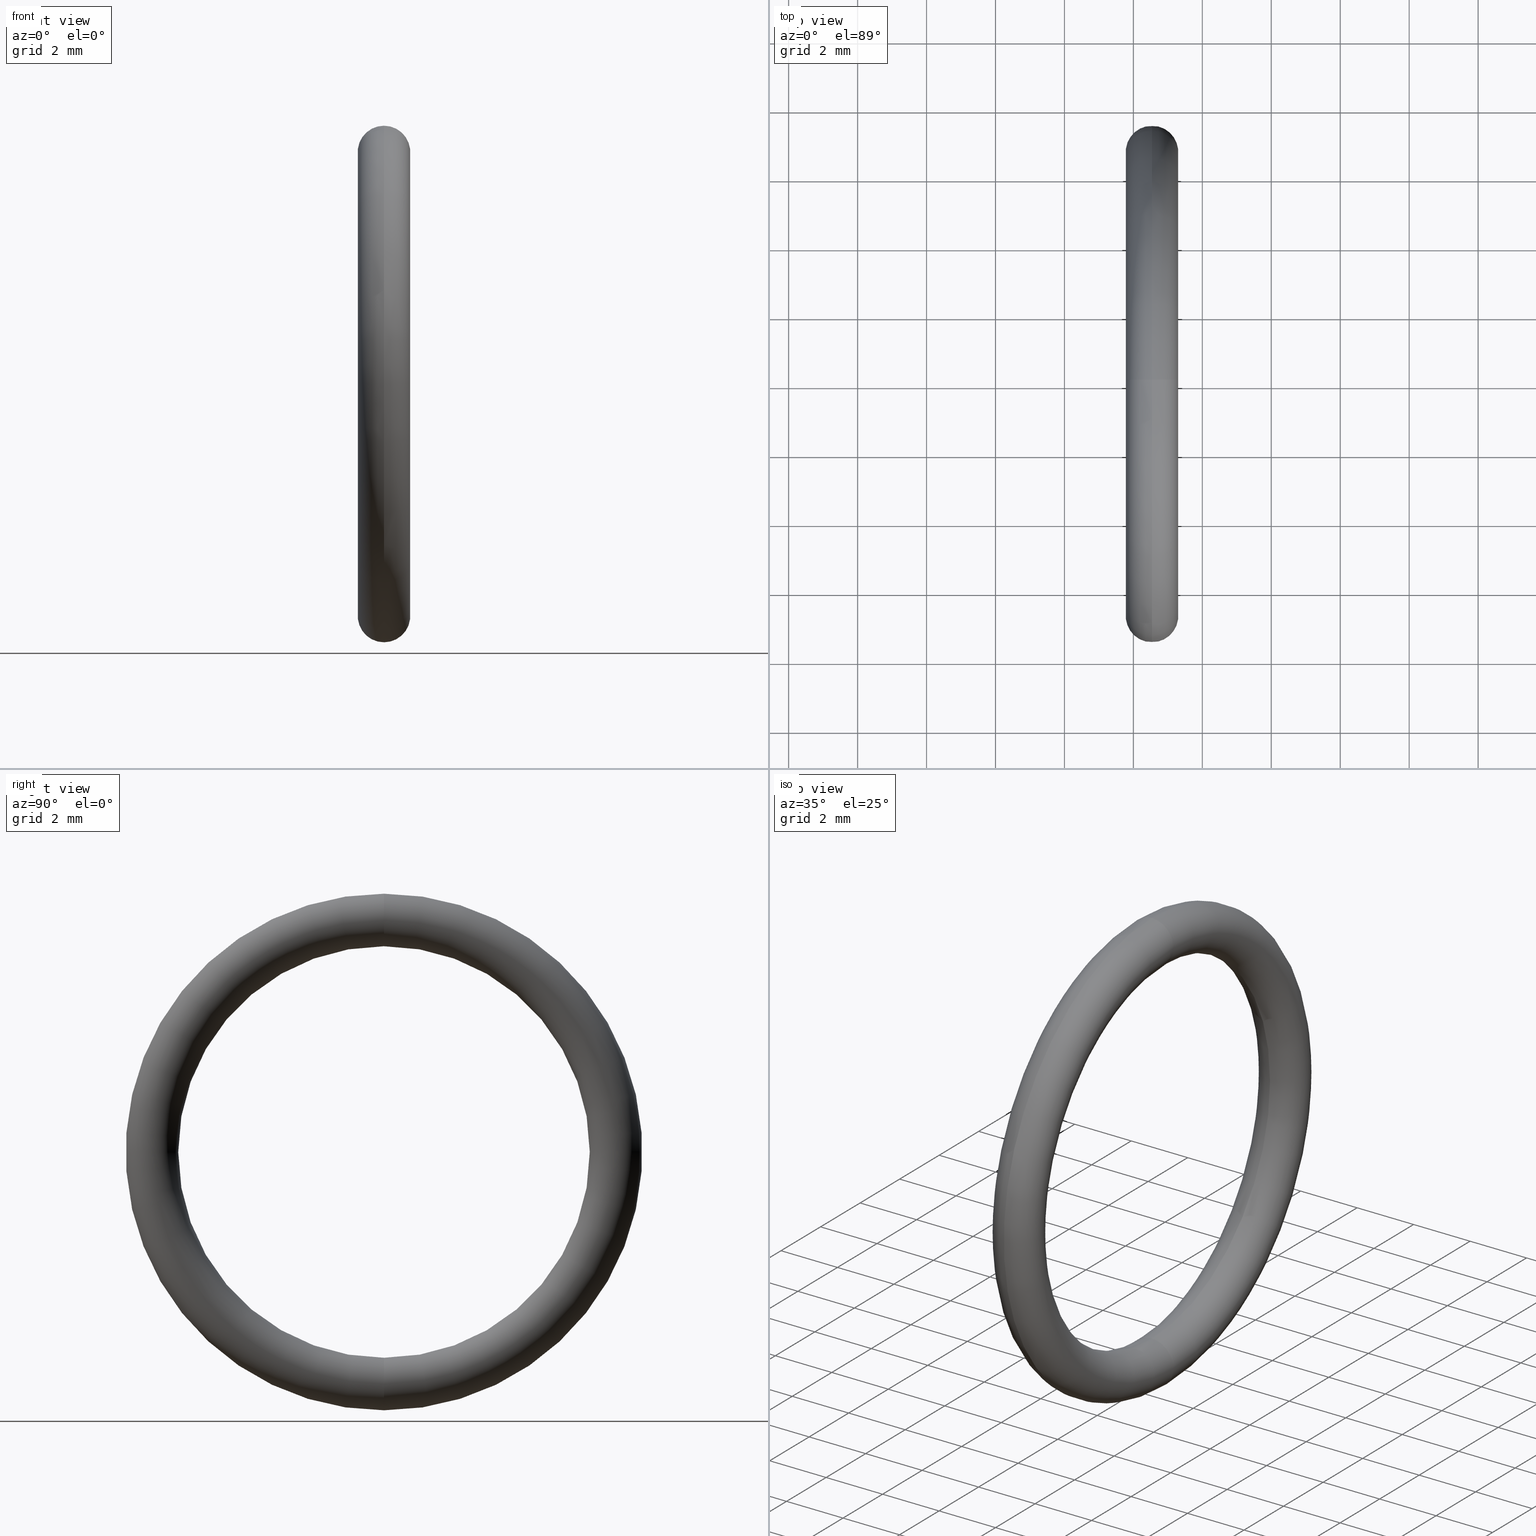
[diagram: canonical four-view strip — front | top / right | iso, engineering-drawing reading convention]
A machine part, canonical four-view strip (front | top / right | iso — engineering-drawing reading convention). The complete STEP part file that produces these views, byte-faithful:
ISO-10303-21;
HEADER;
FILE_DESCRIPTION (( 'STEP AP203' ),
    '1' );
FILE_NAME ('OR-09-VT.STEP',
    '2008-06-24T09:13:25',
    ( 'BSI05' ),
    ( 'BAYSTATE' ),
    'SwSTEP 2.0',
    'SolidWorks 2007',
    '' );
FILE_SCHEMA (( 'CONFIG_CONTROL_DESIGN' ));
ENDSEC;

DATA;
#1 = CIRCLE ( 'NONE', #5, 0.2949999999999999800 ) ;
#2 = DIRECTION ( 'NONE',  ( 0.0000000000000000000, 0.0000000000000000000, 1.000000000000000000 ) ) ;
#3 = DIRECTION ( 'NONE',  ( -1.000000000000000000, 0.0000000000000000000, 0.0000000000000000000 ) ) ;
#4 = CARTESIAN_POINT ( 'NONE',  ( 0.1000000000000000500, 0.0000000000000000000, 0.0000000000000000000 ) ) ;
#5 = AXIS2_PLACEMENT_3D ( 'NONE', #4, #3, #2 ) ;
#6 = LOCAL_TIME ( 14, 43, 25.00000000000000000, #128 ) ;
#7 = CC_DESIGN_APPROVAL ( #131, ( #134 ) ) ;
#8 = APPROVAL_DATE_TIME ( #10, #131 ) ;
#9 = LOCAL_TIME ( 14, 43, 25.00000000000000000, #105 ) ;
#10 = DATE_AND_TIME ( #11, #6 ) ;
#11 = CALENDAR_DATE ( 2008, 24, 6 ) ;
#12 = DATE_AND_TIME ( #14, #9 ) ;
#13 = DATE_TIME_ROLE ( 'creation_date' ) ;
#14 = CALENDAR_DATE ( 2008, 24, 6 ) ;
#15 = CC_DESIGN_DATE_AND_TIME_ASSIGNMENT ( #12, #13, ( #134 ) ) ;
#16 = EDGE_LOOP ( 'NONE', ( #17, #26, #46, #47 ) ) ;
#17 = ORIENTED_EDGE ( 'NONE', *, *, #39, .F. ) ;
#18 = ORIENTED_EDGE ( 'NONE', *, *, #37, .T. ) ;
#19 = ORIENTED_EDGE ( 'NONE', *, *, #57, .F. ) ;
#20 = ADVANCED_FACE ( 'NONE', ( #35 ), #31, .T. ) ;
#21 = EDGE_CURVE ( 'NONE', #49, #52, #68, .T. ) ;
#22 = ORIENTED_EDGE ( 'NONE', *, *, #62, .T. ) ;
#23 = EDGE_LOOP ( 'NONE', ( #38, #22, #55, #51 ) ) ;
#24 = EDGE_CURVE ( 'NONE', #52, #49, #71, .T. ) ;
#25 = EDGE_CURVE ( 'NONE', #54, #53, #84, .T. ) ;
#26 = ORIENTED_EDGE ( 'NONE', *, *, #24, .F. ) ;
#27 = ADVANCED_FACE ( 'NONE', ( #85 ), #86, .T. ) ;
#28 = DIRECTION ( 'NONE',  ( 0.0000000000000000000, 0.0000000000000000000, 1.000000000000000000 ) ) ;
#29 = DIRECTION ( 'NONE',  ( -1.000000000000000000, 0.0000000000000000000, 0.0000000000000000000 ) ) ;
#30 = AXIS2_PLACEMENT_3D ( 'NONE', #34, #29, #28 ) ;
#31 = TOROIDAL_SURFACE ( 'NONE', #30, 0.2649999999999999600, 0.03000000000000000900 ) ;
#32 = PERSON_AND_ORGANIZATION_ROLE ( 'creator' ) ;
#33 = PERSON_AND_ORGANIZATION ( #148, #147 ) ;
#34 = CARTESIAN_POINT ( 'NONE',  ( 0.1000000000000000500, 0.0000000000000000000, 0.0000000000000000000 ) ) ;
#35 = FACE_OUTER_BOUND ( 'NONE', #16, .T. ) ;
#36 = MANIFOLD_SOLID_BREP ( 'NONE', #40 ) ;
#37 = EDGE_CURVE ( 'NONE', #53, #54, #87, .T. ) ;
#38 = ORIENTED_EDGE ( 'NONE', *, *, #37, .F. ) ;
#39 = EDGE_CURVE ( 'NONE', #49, #53, #97, .T. ) ;
#40 = CLOSED_SHELL ( 'NONE', ( #56, #60, #20, #27 ) ) ;
#41 = ORIENTED_EDGE ( 'NONE', *, *, #24, .T. ) ;
#42 = ORIENTED_EDGE ( 'NONE', *, *, #25, .F. ) ;
#43 = ORIENTED_EDGE ( 'NONE', *, *, #50, .T. ) ;
#44 = ORIENTED_EDGE ( 'NONE', *, *, #62, .F. ) ;
#45 = CC_DESIGN_PERSON_AND_ORGANIZATION_ASSIGNMENT ( #33, #32, ( #134 ) ) ;
#46 = ORIENTED_EDGE ( 'NONE', *, *, #57, .T. ) ;
#47 = ORIENTED_EDGE ( 'NONE', *, *, #25, .T. ) ;
#48 = EDGE_LOOP ( 'NONE', ( #44, #42, #43, #41 ) ) ;
#49 = VERTEX_POINT ( 'NONE', #98 ) ;
#50 = EDGE_CURVE ( 'NONE', #54, #52, #93, .T. ) ;
#51 = ORIENTED_EDGE ( 'NONE', *, *, #50, .F. ) ;
#52 = VERTEX_POINT ( 'NONE', #114 ) ;
#53 = VERTEX_POINT ( 'NONE', #113 ) ;
#54 = VERTEX_POINT ( 'NONE', #112 ) ;
#55 = ORIENTED_EDGE ( 'NONE', *, *, #21, .T. ) ;
#56 = ADVANCED_FACE ( 'NONE', ( #111 ), #109, .T. ) ;
#57 = EDGE_CURVE ( 'NONE', #52, #54, #104, .T. ) ;
#58 = EDGE_LOOP ( 'NONE', ( #61, #59, #18, #19 ) ) ;
#59 = ORIENTED_EDGE ( 'NONE', *, *, #39, .T. ) ;
#60 = ADVANCED_FACE ( 'NONE', ( #117 ), #120, .T. ) ;
#61 = ORIENTED_EDGE ( 'NONE', *, *, #21, .F. ) ;
#62 = EDGE_CURVE ( 'NONE', #53, #49, #1, .T. ) ;
#63 = DIRECTION ( 'NONE',  ( 0.0000000000000000000, 0.0000000000000000000, -1.000000000000000000 ) ) ;
#64 = DIRECTION ( 'NONE',  ( 0.0000000000000000000, -1.000000000000000000, 0.0000000000000000000 ) ) ;
#65 = DIRECTION ( 'NONE',  ( 0.0000000000000000000, 0.0000000000000000000, -1.000000000000000000 ) ) ;
#66 = DIRECTION ( 'NONE',  ( 0.0000000000000000000, -1.000000000000000000, 0.0000000000000000000 ) ) ;
#67 = CARTESIAN_POINT ( 'NONE',  ( 0.1000000000000000500, 0.0000000000000000000, 0.2649999999999999600 ) ) ;
#68 = CIRCLE ( 'NONE', #72, 0.03000000000000002300 ) ;
#69 = CARTESIAN_POINT ( 'NONE',  ( 0.1000000000000000500, 0.0000000000000000000, 0.2649999999999999600 ) ) ;
#70 = AXIS2_PLACEMENT_3D ( 'NONE', #67, #66, #65 ) ;
#71 = CIRCLE ( 'NONE', #70, 0.03000000000000002300 ) ;
#72 = AXIS2_PLACEMENT_3D ( 'NONE', #69, #64, #63 ) ;
#73 = CARTESIAN_POINT ( 'NONE',  ( 0.1000000000000000500, 3.245314017740485600E-017, -0.2649999999999999600 ) ) ;
#74 = DIRECTION ( 'NONE',  ( 0.0000000000000000000, 0.0000000000000000000, 1.000000000000000000 ) ) ;
#75 = DIRECTION ( 'NONE',  ( -1.000000000000000000, 0.0000000000000000000, 0.0000000000000000000 ) ) ;
#76 = AXIS2_PLACEMENT_3D ( 'NONE', #77, #75, #74 ) ;
#77 = CARTESIAN_POINT ( 'NONE',  ( 0.1000000000000000500, 0.0000000000000000000, 0.0000000000000000000 ) ) ;
#78 = DIRECTION ( 'NONE',  ( 0.0000000000000000000, -1.224646799147353500E-016, 1.000000000000000000 ) ) ;
#79 = DIRECTION ( 'NONE',  ( 0.0000000000000000000, 1.000000000000000000, 1.224646799147353200E-016 ) ) ;
#80 = DIRECTION ( 'NONE',  ( 0.0000000000000000000, -1.224646799147353500E-016, 1.000000000000000000 ) ) ;
#81 = DIRECTION ( 'NONE',  ( 0.0000000000000000000, 1.000000000000000000, 1.224646799147353200E-016 ) ) ;
#82 = CARTESIAN_POINT ( 'NONE',  ( 0.1000000000000000500, 3.245314017740485600E-017, -0.2649999999999999600 ) ) ;
#83 = AXIS2_PLACEMENT_3D ( 'NONE', #82, #81, #80 ) ;
#84 = CIRCLE ( 'NONE', #99, 0.03000000000000002300 ) ;
#85 = FACE_OUTER_BOUND ( 'NONE', #48, .T. ) ;
#86 = TOROIDAL_SURFACE ( 'NONE', #76, 0.2649999999999999600, 0.03000000000000000900 ) ;
#87 = CIRCLE ( 'NONE', #83, 0.03000000000000002300 ) ;
#88 = CARTESIAN_POINT ( 'NONE',  ( 0.1000000000000000500, 0.0000000000000000000, 0.0000000000000000000 ) ) ;
#89 = DIRECTION ( 'NONE',  ( 0.0000000000000000000, 0.0000000000000000000, 1.000000000000000000 ) ) ;
#90 = DIRECTION ( 'NONE',  ( -1.000000000000000000, 0.0000000000000000000, 0.0000000000000000000 ) ) ;
#91 = CARTESIAN_POINT ( 'NONE',  ( 0.1000000000000000500, 0.0000000000000000000, 0.0000000000000000000 ) ) ;
#92 = AXIS2_PLACEMENT_3D ( 'NONE', #91, #90, #89 ) ;
#93 = CIRCLE ( 'NONE', #92, 0.2349999999999999600 ) ;
#94 = DIRECTION ( 'NONE',  ( 0.0000000000000000000, 0.0000000000000000000, 1.000000000000000000 ) ) ;
#95 = DIRECTION ( 'NONE',  ( -1.000000000000000000, 0.0000000000000000000, 0.0000000000000000000 ) ) ;
#96 = AXIS2_PLACEMENT_3D ( 'NONE', #88, #95, #94 ) ;
#97 = CIRCLE ( 'NONE', #96, 0.2949999999999999800 ) ;
#98 = CARTESIAN_POINT ( 'NONE',  ( 0.1000000000000000500, 0.0000000000000000000, 0.2949999999999999800 ) ) ;
#99 = AXIS2_PLACEMENT_3D ( 'NONE', #73, #79, #78 ) ;
#100 = DIRECTION ( 'NONE',  ( 0.0000000000000000000, 0.0000000000000000000, 1.000000000000000000 ) ) ;
#101 = DIRECTION ( 'NONE',  ( -1.000000000000000000, 0.0000000000000000000, 0.0000000000000000000 ) ) ;
#102 = CARTESIAN_POINT ( 'NONE',  ( 0.1000000000000000500, 0.0000000000000000000, 0.0000000000000000000 ) ) ;
#103 = AXIS2_PLACEMENT_3D ( 'NONE', #102, #101, #100 ) ;
#104 = CIRCLE ( 'NONE', #103, 0.2349999999999999600 ) ;
#105 = COORDINATED_UNIVERSAL_TIME_OFFSET ( 5, 30, .AHEAD. ) ;
#106 = DIRECTION ( 'NONE',  ( 0.0000000000000000000, 0.0000000000000000000, 1.000000000000000000 ) ) ;
#107 = DIRECTION ( 'NONE',  ( -1.000000000000000000, 0.0000000000000000000, 0.0000000000000000000 ) ) ;
#108 = AXIS2_PLACEMENT_3D ( 'NONE', #110, #107, #106 ) ;
#109 = TOROIDAL_SURFACE ( 'NONE', #108, 0.2649999999999999600, 0.03000000000000000900 ) ;
#110 = CARTESIAN_POINT ( 'NONE',  ( 0.1000000000000000500, 0.0000000000000000000, 0.0000000000000000000 ) ) ;
#111 = FACE_OUTER_BOUND ( 'NONE', #23, .T. ) ;
#112 = CARTESIAN_POINT ( 'NONE',  ( 0.1000000000000000500, 2.877919977996279200E-017, -0.2349999999999999600 ) ) ;
#113 = CARTESIAN_POINT ( 'NONE',  ( 0.1000000000000000500, 3.612708057484692000E-017, -0.2949999999999999800 ) ) ;
#114 = CARTESIAN_POINT ( 'NONE',  ( 0.1000000000000000500, 0.0000000000000000000, 0.2349999999999999600 ) ) ;
#115 = DIRECTION ( 'NONE',  ( 0.0000000000000000000, 0.0000000000000000000, 1.000000000000000000 ) ) ;
#116 = DIRECTION ( 'NONE',  ( -1.000000000000000000, 0.0000000000000000000, 0.0000000000000000000 ) ) ;
#117 = FACE_OUTER_BOUND ( 'NONE', #58, .T. ) ;
#118 = AXIS2_PLACEMENT_3D ( 'NONE', #119, #116, #115 ) ;
#119 = CARTESIAN_POINT ( 'NONE',  ( 0.1000000000000000500, 0.0000000000000000000, 0.0000000000000000000 ) ) ;
#120 = TOROIDAL_SURFACE ( 'NONE', #118, 0.2649999999999999600, 0.03000000000000000900 ) ;
#121 = UNCERTAINTY_MEASURE_WITH_UNIT (LENGTH_MEASURE( 1.000000000000000100E-005 ), #122, 'distance_accuracy_value', 'NONE');
#122 =( CONVERSION_BASED_UNIT ( 'INCH', #145 ) LENGTH_UNIT ( ) NAMED_UNIT ( #127 ) );
#123 = ADVANCED_BREP_SHAPE_REPRESENTATION ( 'OR-09-VT', ( #36, #144 ), #124 ) ;
#124 =( GEOMETRIC_REPRESENTATION_CONTEXT ( 3 ) GLOBAL_UNCERTAINTY_ASSIGNED_CONTEXT ( ( #121 ) ) GLOBAL_UNIT_ASSIGNED_CONTEXT ( ( #122, #126, #125 ) ) REPRESENTATION_CONTEXT ( 'NONE', 'WORKASPACE' ) );
#125 =( NAMED_UNIT ( * ) SI_UNIT ( $, .STERADIAN. ) SOLID_ANGLE_UNIT ( ) );
#126 =( NAMED_UNIT ( * ) PLANE_ANGLE_UNIT ( ) SI_UNIT ( $, .RADIAN. ) );
#127 = DIMENSIONAL_EXPONENTS ( 1.000000000000000000, 0.0000000000000000000, 0.0000000000000000000, 0.0000000000000000000, 0.0000000000000000000, 0.0000000000000000000, 0.0000000000000000000 ) ;
#128 = COORDINATED_UNIVERSAL_TIME_OFFSET ( 5, 30, .AHEAD. ) ;
#129 = APPROVAL_PERSON_ORGANIZATION ( #133, #131, #130 ) ;
#130 = APPROVAL_ROLE ( '' ) ;
#131 = APPROVAL ( #132, 'UNSPECIFIED' ) ;
#132 = APPROVAL_STATUS ( 'not_yet_approved' ) ;
#133 = PERSON_AND_ORGANIZATION ( #148, #147 ) ;
#134 = PRODUCT_DEFINITION ( 'UNKNOWN', '', #153, #135 ) ;
#135 = DESIGN_CONTEXT ( 'detailed design', #137, 'design' ) ;
#136 = APPLICATION_PROTOCOL_DEFINITION ( 'international standard', 'config_control_design', 1994, #137 ) ;
#137 = APPLICATION_CONTEXT ( 'configuration controlled 3d designs of mechanical parts and assemblies' ) ;
#138 = CC_DESIGN_PERSON_AND_ORGANIZATION_ASSIGNMENT ( #146, #139, ( #149 ) ) ;
#139 = PERSON_AND_ORGANIZATION_ROLE ( 'design_owner' ) ;
#140 =( LENGTH_UNIT ( ) NAMED_UNIT ( * ) SI_UNIT ( $, .METRE. ) );
#141 = DIRECTION ( 'NONE',  ( 1.000000000000000000, 0.0000000000000000000, 0.0000000000000000000 ) ) ;
#142 = DIRECTION ( 'NONE',  ( 0.0000000000000000000, 0.0000000000000000000, 1.000000000000000000 ) ) ;
#143 = CARTESIAN_POINT ( 'NONE',  ( 0.0000000000000000000, 0.0000000000000000000, 0.0000000000000000000 ) ) ;
#144 = AXIS2_PLACEMENT_3D ( 'NONE', #143, #142, #141 ) ;
#145 = LENGTH_MEASURE_WITH_UNIT ( LENGTH_MEASURE( 0.02539999999999999900 ), #140 );
#146 = PERSON_AND_ORGANIZATION ( #148, #147 ) ;
#147 = ORGANIZATION ( 'UNSPECIFIED', 'UNSPECIFIED', '' ) ;
#148 = PERSON ( 'UNSPECIFIED', 'UNSPECIFIED', 'UNSPECIFIED', ('UNSPECIFIED'), ('UNSPECIFIED'), ('UNSPECIFIED') ) ;
#149 = PRODUCT ( 'OR-09-VT', 'OR-09-VT', '', ( #150 ) ) ;
#150 = MECHANICAL_CONTEXT ( 'NONE', #152, 'mechanical' ) ;
#151 = APPLICATION_PROTOCOL_DEFINITION ( 'international standard', 'config_control_design', 1994, #152 ) ;
#152 = APPLICATION_CONTEXT ( 'configuration controlled 3d designs of mechanical parts and assemblies' ) ;
#153 = PRODUCT_DEFINITION_FORMATION_WITH_SPECIFIED_SOURCE ( 'ANY', '', #149, .NOT_KNOWN. ) ;
#154 = APPROVAL_DATE_TIME ( #183, #162 ) ;
#155 = APPROVAL_PERSON_ORGANIZATION ( #188, #162, #163 ) ;
#156 = CC_DESIGN_PERSON_AND_ORGANIZATION_ASSIGNMENT ( #158, #157, ( #159 ) ) ;
#157 = PERSON_AND_ORGANIZATION_ROLE ( 'classification_officer' ) ;
#158 = PERSON_AND_ORGANIZATION ( #148, #147 ) ;
#159 = SECURITY_CLASSIFICATION ( '', '', #160 ) ;
#160 = SECURITY_CLASSIFICATION_LEVEL ( 'unclassified' ) ;
#161 = APPROVAL_STATUS ( 'not_yet_approved' ) ;
#162 = APPROVAL ( #161, 'UNSPECIFIED' ) ;
#163 = APPROVAL_ROLE ( '' ) ;
#164 = PERSON_AND_ORGANIZATION ( #148, #147 ) ;
#165 = CC_DESIGN_DATE_AND_TIME_ASSIGNMENT ( #167, #166, ( #159 ) ) ;
#166 = DATE_TIME_ROLE ( 'classification_date' ) ;
#167 = DATE_AND_TIME ( #168, #169 ) ;
#168 = CALENDAR_DATE ( 2008, 24, 6 ) ;
#169 = LOCAL_TIME ( 14, 43, 25.00000000000000000, #170 ) ;
#170 = COORDINATED_UNIVERSAL_TIME_OFFSET ( 5, 30, .AHEAD. ) ;
#171 = CC_DESIGN_APPROVAL ( #179, ( #159 ) ) ;
#172 = APPROVAL_DATE_TIME ( #173, #179 ) ;
#173 = DATE_AND_TIME ( #174, #175 ) ;
#174 = CALENDAR_DATE ( 2008, 24, 6 ) ;
#175 = LOCAL_TIME ( 14, 43, 25.00000000000000000, #176 ) ;
#176 = COORDINATED_UNIVERSAL_TIME_OFFSET ( 5, 30, .AHEAD. ) ;
#177 = APPROVAL_PERSON_ORGANIZATION ( #164, #179, #178 ) ;
#178 = APPROVAL_ROLE ( '' ) ;
#179 = APPROVAL ( #180, 'UNSPECIFIED' ) ;
#180 = APPROVAL_STATUS ( 'not_yet_approved' ) ;
#181 = PERSON_AND_ORGANIZATION_ROLE ( 'creator' ) ;
#182 = PERSON_AND_ORGANIZATION ( #148, #147 ) ;
#183 = DATE_AND_TIME ( #191, #192 ) ;
#184 = COORDINATED_UNIVERSAL_TIME_OFFSET ( 5, 30, .AHEAD. ) ;
#185 = CC_DESIGN_PERSON_AND_ORGANIZATION_ASSIGNMENT ( #187, #186, ( #153 ) ) ;
#186 = PERSON_AND_ORGANIZATION_ROLE ( 'design_supplier' ) ;
#187 = PERSON_AND_ORGANIZATION ( #148, #147 ) ;
#188 = PERSON_AND_ORGANIZATION ( #148, #147 ) ;
#189 = CC_DESIGN_PERSON_AND_ORGANIZATION_ASSIGNMENT ( #182, #181, ( #153 ) ) ;
#190 = CC_DESIGN_APPROVAL ( #162, ( #153 ) ) ;
#191 = CALENDAR_DATE ( 2008, 24, 6 ) ;
#192 = LOCAL_TIME ( 14, 43, 25.00000000000000000, #184 ) ;
#193 = SHAPE_DEFINITION_REPRESENTATION ( #194, #123 ) ;
#194 = PRODUCT_DEFINITION_SHAPE ( 'NONE', 'NONE',  #134 ) ;
#195 = PRODUCT_RELATED_PRODUCT_CATEGORY ( 'detail', '', ( #149 ) ) ;
#196 = CC_DESIGN_SECURITY_CLASSIFICATION ( #159, ( #153 ) ) ;
ENDSEC;
END-ISO-10303-21;
